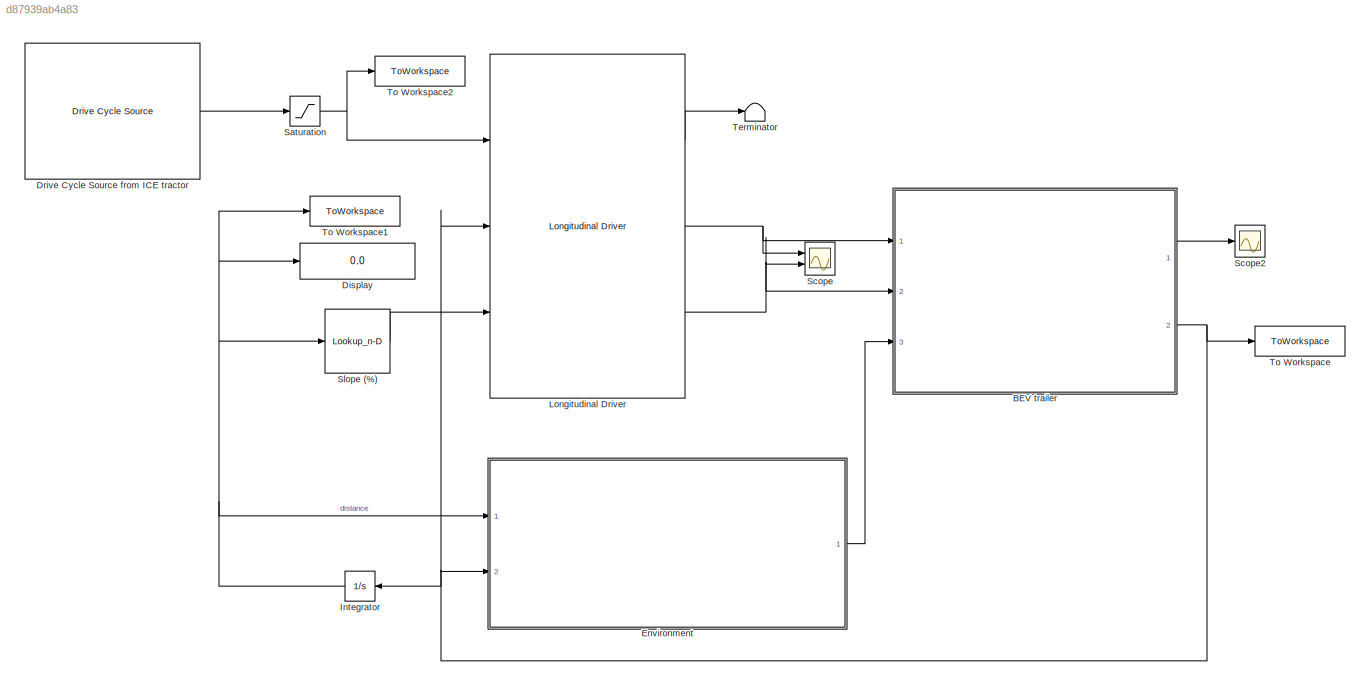
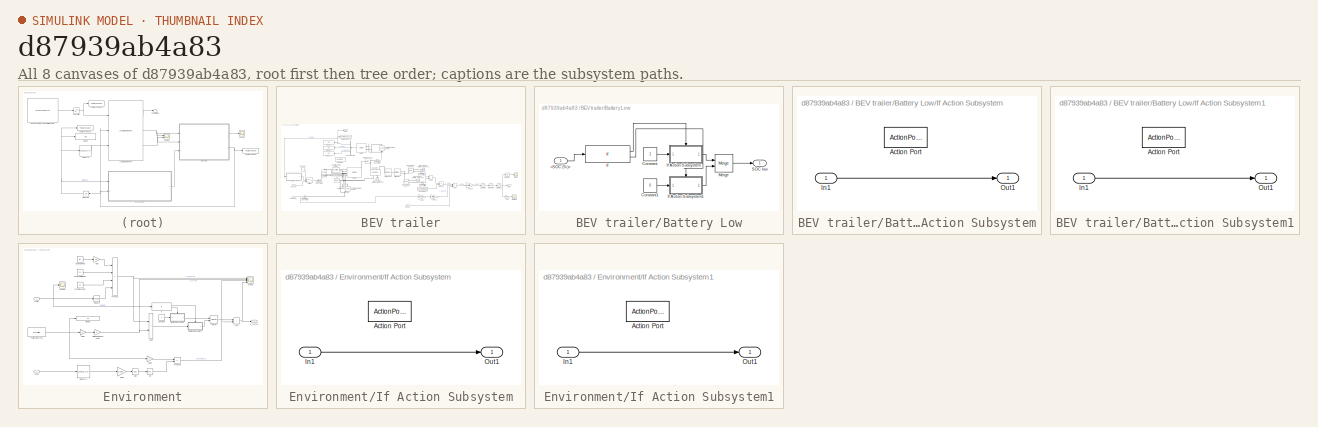
[diagram: thumbnail index - all 8 canvases of the model, root first then tree order]
MODEL slx_d87939ab4a83
KIND model
CONFIG AbsTol = auto
CONFIG EnableMultiTasking = off
CONFIG FixedStep = auto
CONFIG MaxStep = auto
CONFIG MinStep = auto
CONFIG RelTol = 1e-3
CONFIG SampleTimeConstraint = Unconstrained
CONFIG SolverName = ode23t
CONFIG StartTime = 0.0
CONFIG StopTime = 30000
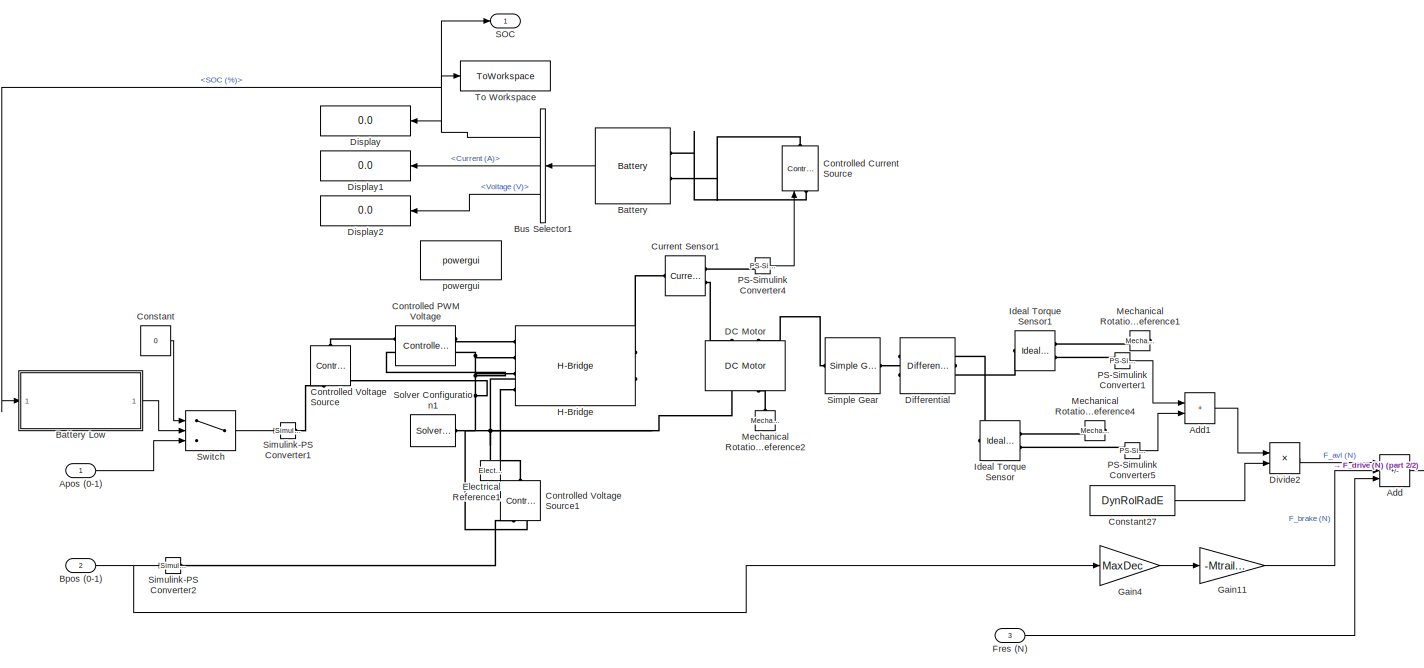
[diagram: BEV trailer - part 1/2, most of the canvas]
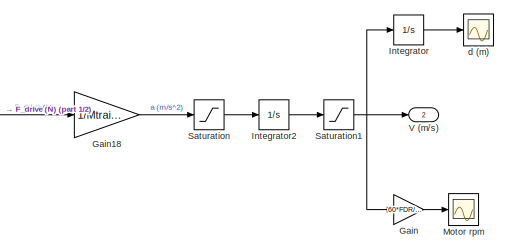
[diagram: BEV trailer - part 2/2, bottom right region]
BLOCK [SubSystem] BEV trailer
  Ports = [3, 2]
  RequestExecContextInheritance = off
BLOCK [Sum] BEV trailer/Add
  IconShape = rectangular
  Inputs = ++-
  Ports = [3, 1]
BLOCK [Sum] BEV trailer/Add1
  IconShape = rectangular
  Ports = [2, 1]
BLOCK [Inport] BEV trailer/Apos (0-1)
BLOCK [Reference] BEV trailer/Battery  REF=electricdrivelib/Extra Sources/Battery
  Ports = [0, 1, 0, 0, 0, 2]
  SourceBlock = electricdrivelib/Extra Sources/Battery
  SourceProductBaseCode = PS
  SourceType = Battery
BLOCK [SubSystem] BEV trailer/Battery Low
  Ports = [1, 1]
  RequestExecContextInheritance = off
BLOCK [Inport] BEV trailer/Battery Low/<SOC (%)>
BLOCK [Constant] BEV trailer/Battery Low/Constant
BLOCK [Constant] BEV trailer/Battery Low/Constant1
  Value = 0
BLOCK [If] BEV trailer/Battery Low/If
  IfExpression = u1 < 1
  Ports = [1, 2]
BLOCK [SubSystem] BEV trailer/Battery Low/If Action Subsystem
  Ports = [1, 1, 0, 0, 0, 0, 0, 1]
  RequestExecContextInheritance = off
  TreatAsAtomicUnit = on
BLOCK [ActionPort] BEV trailer/Battery Low/If Action Subsystem/Action Port
  ActionPortLabel = if(u1 < 1)
BLOCK [Inport] BEV trailer/Battery Low/If Action Subsystem/In1
BLOCK [Outport] BEV trailer/Battery Low/If Action Subsystem/Out1
BLOCK [SubSystem] BEV trailer/Battery Low/If Action Subsystem1
  Ports = [1, 1, 0, 0, 0, 0, 0, 1]
  RequestExecContextInheritance = off
  TreatAsAtomicUnit = on
BLOCK [ActionPort] BEV trailer/Battery Low/If Action Subsystem1/Action Port
  ActionPortLabel = else
BLOCK [Inport] BEV trailer/Battery Low/If Action Subsystem1/In1
BLOCK [Outport] BEV trailer/Battery Low/If Action Subsystem1/Out1
BLOCK [Merge] BEV trailer/Battery Low/Merge
  Ports = [2, 1]
BLOCK [Outport] BEV trailer/Battery Low/SOC low
BLOCK [Inport] BEV trailer/Bpos (0-1)
  Port = 2
BLOCK [BusSelector] BEV trailer/Bus Selector1
  NameLocation = top
  OutputSignals = SOC (%),Current (A),Voltage (V)
  Ports = [1, 3]
BLOCK [Constant] BEV trailer/Constant
  Value = 0
BLOCK [Constant] BEV trailer/Constant27
  Value = DynRolRadE
BLOCK [Reference] BEV trailer/Controlled Current Source  REF=powerlib/Electrical
Sources/Controlled Current Source
  NameLocation = right
  Ports = [1, 0, 0, 0, 0, 1, 1]
  SourceBlock = powerlib/Electrical\nSources/Controlled Current Source
  SourceProductBaseCode = PS
  SourceType = Controlled Current Source
BLOCK [Reference] BEV trailer/Controlled PWM Voltage  REF=ee_lib/Integrated Circuits/Controlled PWM
Voltage
  Ports = [0, 0, 0, 0, 0, 2, 2]
  SourceBlock = ee_lib/Integrated Circuits/Controlled PWM\nVoltage
  SourceProductBaseCode = PS
  SourceType = Controlled PWM\nVoltage
BLOCK [Reference] BEV trailer/Controlled Voltage Source  REF=fl_lib/Electrical/Electrical Sources/Controlled Voltage
Source
  NameLocation = right
  Ports = [0, 0, 0, 0, 0, 1, 2]
  SourceBlock = fl_lib/Electrical/Electrical Sources/Controlled Voltage\nSource
  SourceProductBaseCode = SS
  SourceType = Controlled Voltage\nSource
BLOCK [Reference] BEV trailer/Controlled Voltage Source1  REF=fl_lib/Electrical/Electrical Sources/Controlled Voltage
Source
  NameLocation = right
  Ports = [0, 0, 0, 0, 0, 1, 2]
  SourceBlock = fl_lib/Electrical/Electrical Sources/Controlled Voltage\nSource
  SourceProductBaseCode = SS
  SourceType = Controlled Voltage\nSource
BLOCK [Reference] BEV trailer/Current Sensor1  REF=fl_lib/Electrical/Electrical Sensors/Current Sensor
  Ports = [0, 0, 0, 0, 0, 1, 2]
  SourceBlock = fl_lib/Electrical/Electrical Sensors/Current Sensor
  SourceProductBaseCode = SS
  SourceType = Current Sensor
BLOCK [Reference] BEV trailer/DC Motor  REF=ee_lib/Electromechanical/Brushed Motors/DC Motor
  NameLocation = right
  Ports = [0, 0, 0, 0, 0, 2, 2]
  SourceBlock = ee_lib/Electromechanical/Brushed Motors/DC Motor
  SourceProductBaseCode = PS
  SourceType = DC Motor
BLOCK [Reference] BEV trailer/Differential  REF=sdl_lib/Gears/Differential
  NameLocation = top
  Ports = [0, 0, 0, 0, 0, 1, 2]
  SourceBlock = sdl_lib/Gears/Differential
  SourceProductBaseCode = LD
  SourceType = Differential
BLOCK [Display] BEV trailer/Display
  Decimation = 1
  NameLocation = top
  Ports = [1]
BLOCK [Display] BEV trailer/Display1
  Decimation = 1
  NameLocation = top
  Ports = [1]
BLOCK [Display] BEV trailer/Display2
  Decimation = 1
  NameLocation = top
  Ports = [1]
BLOCK [Product] BEV trailer/Divide2
  Inputs = */
  Ports = [2, 1]
BLOCK [Reference] BEV trailer/Electrical Reference1  REF=fl_lib/Electrical/Electrical Elements/Electrical Reference
  NameLocation = right
  Ports = [0, 0, 0, 0, 0, 1]
  SourceBlock = fl_lib/Electrical/Electrical Elements/Electrical Reference
  SourceProductBaseCode = SS
  SourceType = Electrical Reference
BLOCK [Inport] BEV trailer/Fres (N)
  Port = 3
BLOCK [Gain] BEV trailer/Gain
  Gain = 60*FDR/(2*3.1415*DynRolRad)
BLOCK [Gain] BEV trailer/Gain11
  Gain = -Mtrailer
BLOCK [Gain] BEV trailer/Gain18
  Gain = 1/Mtrailer
BLOCK [Gain] BEV trailer/Gain4
  Gain = MaxDec
BLOCK [Reference] BEV trailer/H-Bridge  REF=ee_lib/Semiconductors &
Converters/Converters/H-Bridge
  Ports = [0, 0, 0, 0, 0, 4, 2]
  SourceBlock = ee_lib/Semiconductors &\nConverters/Converters/H-Bridge
  SourceProductBaseCode = PS
  SourceType = H-Bridge
BLOCK [Reference] BEV trailer/Ideal Torque Sensor  REF=fl_lib/Mechanical/Mechanical Sensors/Ideal Torque Sensor
  Ports = [0, 0, 0, 0, 0, 1, 2]
  SourceBlock = fl_lib/Mechanical/Mechanical Sensors/Ideal Torque Sensor
  SourceProductBaseCode = SS
  SourceType = Ideal Torque Sensor
BLOCK [Reference] BEV trailer/Ideal Torque Sensor1  REF=fl_lib/Mechanical/Mechanical Sensors/Ideal Torque Sensor
  Ports = [0, 0, 0, 0, 0, 1, 2]
  SourceBlock = fl_lib/Mechanical/Mechanical Sensors/Ideal Torque Sensor
  SourceProductBaseCode = SS
  SourceType = Ideal Torque Sensor
BLOCK [Integrator] BEV trailer/Integrator
  Ports = [1, 1]
BLOCK [Integrator] BEV trailer/Integrator2
  ContinuousStateAttributes = 'acceleration'
  Ports = [1, 1]
BLOCK [Reference] BEV trailer/Mechanical Rotational Reference1  REF=fl_lib/Mechanical/Rotational Elements/Mechanical
Rotational Reference
  NameLocation = top
  Ports = [0, 0, 0, 0, 0, 1]
  SourceBlock = fl_lib/Mechanical/Rotational Elements/Mechanical\nRotational Reference
  SourceProductBaseCode = SS
  SourceType = Mechanical\nRotational Reference
BLOCK [Reference] BEV trailer/Mechanical Rotational Reference2  REF=fl_lib/Mechanical/Rotational Elements/Mechanical
Rotational Reference
  NameLocation = right
  Ports = [0, 0, 0, 0, 0, 1]
  SourceBlock = fl_lib/Mechanical/Rotational Elements/Mechanical\nRotational Reference
  SourceProductBaseCode = SS
  SourceType = Mechanical\nRotational Reference
BLOCK [Reference] BEV trailer/Mechanical Rotational Reference4  REF=fl_lib/Mechanical/Rotational Elements/Mechanical
Rotational Reference
  NameLocation = top
  Ports = [0, 0, 0, 0, 0, 1]
  SourceBlock = fl_lib/Mechanical/Rotational Elements/Mechanical\nRotational Reference
  SourceProductBaseCode = SS
  SourceType = Mechanical\nRotational Reference
BLOCK [Scope] BEV trailer/Motor rpm
  Floating = off
  NumInputPorts = 1
  Ports = [1]
  ScopeSpecificationString = Simulink.scopes.TimeScopeBlockCfg('CurrentConfiguration', extmgr.ConfigurationSet(extmgr.Configuration('Core','General UI',true),extmgr.Configuration('Core','Source UI',true),extmgr.Configuration('Sources','WiredSimulink',true,'DataLoggingVariableName','ScopeData2'),extmgr.Configuration('Visuals','Time Domain',true,'SerializedDisplays',{struct('MinYLimReal','-586.22373','MaxYLimReal','5276.01359',...<+1434ch>
BLOCK [Reference] BEV trailer/PS-Simulink Converter1  REF=nesl_utility/PS-Simulink
Converter
  Ports = [0, 1, 0, 0, 0, 1]
  SourceBlock = nesl_utility/PS-Simulink\nConverter
  SourceProductBaseCode = PW,SS
  SourceType = PS-Simulink\nConverter
BLOCK [Reference] BEV trailer/PS-Simulink Converter4  REF=nesl_utility/PS-Simulink
Converter
  Ports = [0, 1, 0, 0, 0, 1]
  SourceBlock = nesl_utility/PS-Simulink\nConverter
  SourceProductBaseCode = PW,SS
  SourceType = PS-Simulink\nConverter
BLOCK [Reference] BEV trailer/PS-Simulink Converter5  REF=nesl_utility/PS-Simulink
Converter
  Ports = [0, 1, 0, 0, 0, 1]
  SourceBlock = nesl_utility/PS-Simulink\nConverter
  SourceProductBaseCode = PW,SS
  SourceType = PS-Simulink\nConverter
BLOCK [Outport] BEV trailer/SOC 
BLOCK [Saturate] BEV trailer/Saturation
  LowerLimit = -(MaxDec)
  UpperLimit = MaxAcc
BLOCK [Saturate] BEV trailer/Saturation1
  LowerLimit = 0
  UpperLimit = inf
BLOCK [Reference] BEV trailer/Simple Gear  REF=sdl_lib/Gears/Simple Gear
  Ports = [0, 0, 0, 0, 0, 1, 1]
  SourceBlock = sdl_lib/Gears/Simple Gear
  SourceProductBaseCode = LD
  SourceType = Simple Gear
BLOCK [Reference] BEV trailer/Simulink-PS Converter1  REF=nesl_utility/Simulink-PS
Converter
  Ports = [1, 0, 0, 0, 0, 0, 1]
  SourceBlock = nesl_utility/Simulink-PS\nConverter
  SourceProductBaseCode = PW,SS
  SourceType = Simulink-PS\nConverter
BLOCK [Reference] BEV trailer/Simulink-PS Converter2  REF=nesl_utility/Simulink-PS
Converter
  Ports = [1, 0, 0, 0, 0, 0, 1]
  SourceBlock = nesl_utility/Simulink-PS\nConverter
  SourceProductBaseCode = PW,SS
  SourceType = Simulink-PS\nConverter
BLOCK [Reference] BEV trailer/Solver Configuration1  REF=nesl_utility/Solver
Configuration
  Ports = [0, 0, 0, 0, 0, 0, 1]
  SourceBlock = nesl_utility/Solver\nConfiguration
  SourceProductBaseCode = PW,SS
  SourceType = Solver\nConfiguration
BLOCK [Switch] BEV trailer/Switch
  Criteria = u2 > Threshold
  InputSameDT = off
  SaturateOnIntegerOverflow = off
BLOCK [ToWorkspace] BEV trailer/To Workspace
  FixptAsFi = on
  MaxDataPoints = inf
  Ports = [1]
  SampleTime = -1
  SaveFormat = Timeseries
  VariableName = SOC
BLOCK [Outport] BEV trailer/V (m//s)
  Port = 2
BLOCK [Scope] BEV trailer/d (m)
  Floating = off
  NumInputPorts = 1
  Ports = [1]
  ScopeSpecificationString = Simulink.scopes.TimeScopeBlockCfg('CurrentConfiguration', extmgr.ConfigurationSet(extmgr.Configuration('Core','General UI',true),extmgr.Configuration('Core','Source UI',true),extmgr.Configuration('Sources','WiredSimulink',true,'DataLoggingVariableName','ScopeData1'),extmgr.Configuration('Visuals','Time Domain',true,'SerializedDisplays',{struct('MinYLimReal','-12532.63505','MaxYLimReal','112793.715...<+1474ch>
BLOCK [Reference] BEV trailer/powergui  REF=powerlib/powergui
  Ports = []
  Priority = 1
  SourceBlock = powerlib/powergui
  SourceProductBaseCode = PS
  SourceType = PSB option menu block
BLOCK [Display] Display
  Decimation = 1
  Format = long
  Ports = [1]
BLOCK [Reference] Drive Cycle Source from ICE tractor  REF=autolibshared/Drive Cycle Source
  AttributesFormatString = %<cycleVar> (%<tfinal>)
  Ports = [0, 1]
  SourceBlock = autolibshared/Drive Cycle Source
  SourceProductBaseCode = PW,MT,UV,VE,VP
  SourceType = Drive Cycle Source
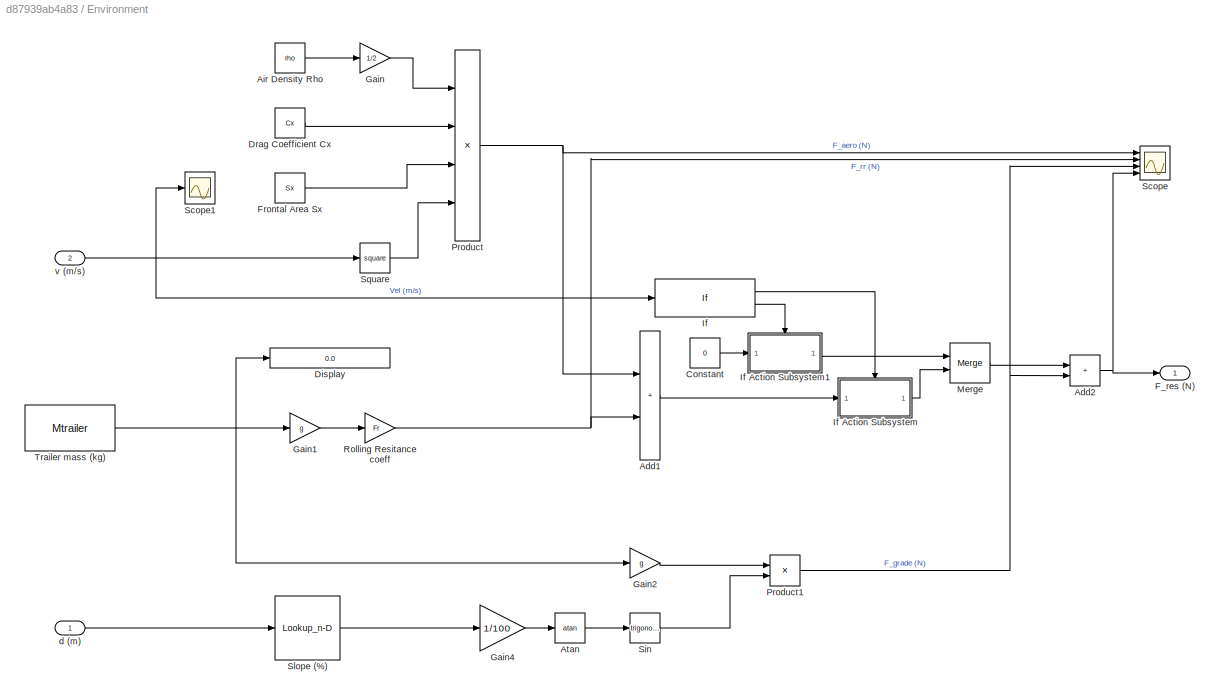
BLOCK [SubSystem] Environment
  Ports = [2, 1]
  RequestExecContextInheritance = off
BLOCK [Sum] Environment/Add1
  IconShape = rectangular
  Ports = [2, 1]
BLOCK [Sum] Environment/Add2
  IconShape = rectangular
  Ports = [2, 1]
BLOCK [Constant] Environment/Air Density Rho
  Value = rho
BLOCK [Trigonometry] Environment/Atan
  Operator = atan
  Ports = [1, 1]
BLOCK [Constant] Environment/Constant
  Value = 0
BLOCK [Display] Environment/Display
  Decimation = 1
  Format = long
  Ports = [1]
BLOCK [Constant] Environment/Drag Coefficient Cx
  Value = Cx
BLOCK [Outport] Environment/F_res (N)
BLOCK [Constant] Environment/Frontal Area Sx
  Value = Sx
BLOCK [Gain] Environment/Gain
  Gain = 1/2
BLOCK [Gain] Environment/Gain1
  Gain = g
BLOCK [Gain] Environment/Gain2
  Gain = g
BLOCK [Gain] Environment/Gain4
  Gain = 1/100
BLOCK [If] Environment/If
  Ports = [1, 2]
BLOCK [SubSystem] Environment/If Action Subsystem
  Ports = [1, 1, 0, 0, 0, 0, 0, 1]
  RequestExecContextInheritance = off
  TreatAsAtomicUnit = on
BLOCK [ActionPort] Environment/If Action Subsystem/Action Port
  ActionPortLabel = if(u1 > 0)
BLOCK [Inport] Environment/If Action Subsystem/In1
BLOCK [Outport] Environment/If Action Subsystem/Out1
BLOCK [SubSystem] Environment/If Action Subsystem1
  Ports = [1, 1, 0, 0, 0, 0, 0, 1]
  RequestExecContextInheritance = off
  TreatAsAtomicUnit = on
BLOCK [ActionPort] Environment/If Action Subsystem1/Action Port
  ActionPortLabel = else
BLOCK [Inport] Environment/If Action Subsystem1/In1
BLOCK [Outport] Environment/If Action Subsystem1/Out1
BLOCK [Merge] Environment/Merge
  Ports = [2, 1]
BLOCK [Product] Environment/Product
  Inputs = 4
  Ports = [4, 1]
BLOCK [Product] Environment/Product1
  Ports = [2, 1]
BLOCK [Gain] Environment/Rolling Resitance coeff
  Gain = Fr
BLOCK [Scope] Environment/Scope
  Floating = off
  NumInputPorts = 4
  Ports = [4]
  ScopeSpecificationString = Simulink.scopes.TimeScopeBlockCfg('CurrentConfiguration', extmgr.ConfigurationSet(extmgr.Configuration('Core','General UI',true),extmgr.Configuration('Core','Source UI',true),extmgr.Configuration('Sources','WiredSimulink',true,'DataLoggingVariableName','ScopeData16'),extmgr.Configuration('Visuals','Time Domain',true,'SerializedDisplays',{struct('MinYLimReal','-30512.50148','MaxYLimReal','34655.546...<+1620ch>
BLOCK [Scope] Environment/Scope1
  Floating = off
  NumInputPorts = 1
  Ports = [1]
  ScopeSpecificationString = Simulink.scopes.TimeScopeBlockCfg('CurrentConfiguration', extmgr.ConfigurationSet(extmgr.Configuration('Core','General UI',true),extmgr.Configuration('Core','Source UI',true),extmgr.Configuration('Sources','WiredSimulink',true,'DataLoggingVariableName','ScopeData10'),extmgr.Configuration('Visuals','Time Domain',true,'SerializedDisplays',{struct('MinYLimReal','-1.15217','MaxYLimReal','10.36951','YL...<+1417ch>
BLOCK [Trigonometry] Environment/Sin
  Ports = [1, 1]
BLOCK [Lookup_n-D] Environment/Slope (%)
  BreakpointsForDimension1 = Dist
  InputPortMap = u0
  InternalRulePriority = Speed
  NumberOfTableDimensions = 1
  Ports = [1, 1]
  RndMeth = Simplest
  Table = IntpSlope
BLOCK [Math] Environment/Square
  Operator = square
  Ports = [1, 1]
BLOCK [Constant] Environment/Trailer mass (kg)
  Value = Mtrailer
BLOCK [Inport] Environment/d (m)
BLOCK [Inport] Environment/v (m//s)
  Port = 2
BLOCK [Integrator] Integrator
  NameLocation = top
  Ports = [1, 1]
BLOCK [Reference] Longitudinal Driver  REF=autolibshared/Longitudinal Driver
  Ports = [3, 3]
  SourceBlock = autolibshared/Longitudinal Driver
  SourceProductBaseCode = PW,DR,MT,UV,VE
  SourceType = Longitudinal Driver
BLOCK [Saturate] Saturation
  LowerLimit = 0
  UpperLimit = inf
BLOCK [Scope] Scope
  Floating = off
  NumInputPorts = 2
  Ports = [2]
  ScopeSpecificationString = Simulink.scopes.TimeScopeBlockCfg('CurrentConfiguration', extmgr.ConfigurationSet(extmgr.Configuration('Core','General UI',true),extmgr.Configuration('Core','Source UI',true),extmgr.Configuration('Sources','WiredSimulink',true,'DataLoggingVariableName','ScopeData1'),extmgr.Configuration('Visuals','Time Domain',true,'SerializedDisplays',{struct('MinYLimReal','-0.00004','MaxYLimReal','0.00051','YLab...<+1456ch>
BLOCK [Scope] Scope2
  Floating = off
  NumInputPorts = 1
  Ports = [1]
  ScopeSpecificationString = Simulink.scopes.TimeScopeBlockCfg('CurrentConfiguration', extmgr.ConfigurationSet(extmgr.Configuration('Core','General UI',true),extmgr.Configuration('Core','Source UI',true),extmgr.Configuration('Sources','WiredSimulink',true,'DataLoggingVariableName','ScopeData1'),extmgr.Configuration('Visuals','Time Domain',true,'SerializedDisplays',{struct('MinYLimReal','83.26739','MaxYLimReal','83.76551','YLa...<+1436ch>
BLOCK [Lookup_n-D] Slope (%)
  BreakpointsForDimension1 = Dist
  InputPortMap = u0
  InternalRulePriority = Speed
  NumberOfTableDimensions = 1
  Ports = [1, 1]
  RndMeth = Simplest
  Table = IntpSlope
BLOCK [Terminator] Terminator
BLOCK [ToWorkspace] To Workspace
  FixptAsFi = on
  MaxDataPoints = inf
  Ports = [1]
  SampleTime = -1
  SaveFormat = Timeseries
  VariableName = vel
BLOCK [ToWorkspace] To Workspace1
  FixptAsFi = on
  MaxDataPoints = inf
  Ports = [1]
  SampleTime = -1
  SaveFormat = Timeseries
  VariableName = dist
BLOCK [ToWorkspace] To Workspace2
  FixptAsFi = on
  MaxDataPoints = inf
  Ports = [1]
  SampleTime = -1
  SaveFormat = Timeseries
  VariableName = targ
LINE BEV trailer/Add1:1 -> BEV trailer/Divide2:1
LINE BEV trailer/Add:1 -> BEV trailer/Gain18:1
LINE BEV trailer/Apos (0-1):1 -> BEV trailer/Switch:3
LINE BEV trailer/Battery Low/<SOC (%)>:1 -> BEV trailer/Battery Low/If:1
LINE BEV trailer/Battery Low/Constant1:1 -> BEV trailer/Battery Low/If Action Subsystem1:1
LINE BEV trailer/Battery Low/Constant:1 -> BEV trailer/Battery Low/If Action Subsystem:1
LINE BEV trailer/Battery Low/If Action Subsystem/In1:1 -> BEV trailer/Battery Low/If Action Subsystem/Out1:1
LINE BEV trailer/Battery Low/If Action Subsystem1/In1:1 -> BEV trailer/Battery Low/If Action Subsystem1/Out1:1
LINE BEV trailer/Battery Low/If Action Subsystem1:1 -> BEV trailer/Battery Low/Merge:2
LINE BEV trailer/Battery Low/If Action Subsystem:1 -> BEV trailer/Battery Low/Merge:1
LINE BEV trailer/Battery Low/If:1 -> BEV trailer/Battery Low/If Action Subsystem:ifaction
LINE BEV trailer/Battery Low/If:2 -> BEV trailer/Battery Low/If Action Subsystem1:ifaction
LINE BEV trailer/Battery Low/Merge:1 -> BEV trailer/Battery Low/SOC low:1
LINE BEV trailer/Battery Low:1 -> BEV trailer/Switch:2
LINE BEV trailer/Battery:1 -> BEV trailer/Bus Selector1:1
NET BEV trailer/Bpos (0-1):1 -> BEV trailer/Gain4:1, BEV trailer/Simulink-PS Converter2:1
NET BEV trailer/Bus Selector1:1 -> BEV trailer/Battery Low:1, BEV trailer/Display:1, BEV trailer/SOC :1, BEV trailer/To Workspace:1
LINE BEV trailer/Bus Selector1:2 -> BEV trailer/Display1:1
LINE BEV trailer/Bus Selector1:3 -> BEV trailer/Display2:1
LINE BEV trailer/Constant27:1 -> BEV trailer/Divide2:2
LINE BEV trailer/Constant:1 -> BEV trailer/Switch:1
LINE BEV trailer/Divide2:1 -> BEV trailer/Add:1
LINE BEV trailer/Fres (N):1 -> BEV trailer/Add:3
LINE BEV trailer/Gain11:1 -> BEV trailer/Add:2
LINE BEV trailer/Gain18:1 -> BEV trailer/Saturation:1
LINE BEV trailer/Gain4:1 -> BEV trailer/Gain11:1
LINE BEV trailer/Gain:1 -> BEV trailer/Motor rpm:1
LINE BEV trailer/Integrator2:1 -> BEV trailer/Saturation1:1
LINE BEV trailer/Integrator:1 -> BEV trailer/d (m):1
LINE BEV trailer/PS-Simulink Converter1:1 -> BEV trailer/Add1:1
LINE BEV trailer/PS-Simulink Converter4:1 -> BEV trailer/Controlled Current Source:1
LINE BEV trailer/PS-Simulink Converter5:1 -> BEV trailer/Add1:2
NET BEV trailer/Saturation1:1 -> BEV trailer/Gain:1, BEV trailer/Integrator:1, BEV trailer/V (m//s):1
LINE BEV trailer/Saturation:1 -> BEV trailer/Integrator2:1
LINE BEV trailer/Switch:1 -> BEV trailer/Simulink-PS Converter1:1
LINE BEV trailer:1 -> Scope2:1
NET BEV trailer:2 -> Environment:2, Integrator:1, Longitudinal Driver:2, To Workspace:1
LINE Drive Cycle Source from ICE tractor:1 -> Saturation:1
LINE Environment/Add1:1 -> Environment/If Action Subsystem:1
NET Environment/Add2:1 -> Environment/F_res (N):1, Environment/Scope:4
LINE Environment/Air Density Rho:1 -> Environment/Gain:1
LINE Environment/Atan:1 -> Environment/Sin:1
LINE Environment/Constant:1 -> Environment/If Action Subsystem1:1
LINE Environment/Drag Coefficient Cx:1 -> Environment/Product:2
LINE Environment/Frontal Area Sx:1 -> Environment/Product:3
LINE Environment/Gain1:1 -> Environment/Rolling Resitance coeff:1
LINE Environment/Gain2:1 -> Environment/Product1:1
LINE Environment/Gain4:1 -> Environment/Atan:1
LINE Environment/Gain:1 -> Environment/Product:1
LINE Environment/If Action Subsystem/In1:1 -> Environment/If Action Subsystem/Out1:1
LINE Environment/If Action Subsystem1/In1:1 -> Environment/If Action Subsystem1/Out1:1
LINE Environment/If Action Subsystem1:1 -> Environment/Merge:1
LINE Environment/If Action Subsystem:1 -> Environment/Merge:2
LINE Environment/If:1 -> Environment/If Action Subsystem:ifaction
LINE Environment/If:2 -> Environment/If Action Subsystem1:ifaction
LINE Environment/Merge:1 -> Environment/Add2:1
NET Environment/Product1:1 -> Environment/Add2:2, Environment/Scope:3
NET Environment/Product:1 -> Environment/Add1:1, Environment/Scope:1
NET Environment/Rolling Resitance coeff:1 -> Environment/Add1:2, Environment/Scope:2
LINE Environment/Sin:1 -> Environment/Product1:2
LINE Environment/Slope (%):1 -> Environment/Gain4:1
LINE Environment/Square:1 -> Environment/Product:4
NET Environment/Trailer mass (kg):1 -> Environment/Display:1, Environment/Gain1:1, Environment/Gain2:1
LINE Environment/d (m):1 -> Environment/Slope (%):1
NET Environment/v (m//s):1 -> Environment/If:1, Environment/Scope1:1, Environment/Square:1
LINE Environment:1 -> BEV trailer:3
NET Integrator:1 -> Display:1, Environment:1, Slope (%):1, To Workspace1:1
LINE Longitudinal Driver:1 -> Terminator:1
NET Longitudinal Driver:2 -> BEV trailer:1, Scope:1
NET Longitudinal Driver:3 -> BEV trailer:2, Scope:2
NET Saturation:1 -> Longitudinal Driver:1, To Workspace2:1
LINE Slope (%):1 -> Longitudinal Driver:3
PLINE BEV trailer/Battery:LConn1 -- BEV trailer/Controlled Current Source:LConn1
PLINE BEV trailer/Battery:LConn2 -- BEV trailer/Controlled Current Source:RConn1
PLINE BEV trailer/Controlled PWM Voltage:LConn1 -- BEV trailer/Controlled Voltage Source:LConn1
PNET net1: BEV trailer/Controlled PWM Voltage:LConn2 -- BEV trailer/Controlled PWM Voltage:RConn2 -- BEV trailer/Controlled Voltage Source1:RConn2 -- BEV trailer/Controlled Voltage Source:RConn2 -- BEV trailer/DC Motor:RConn1 -- BEV trailer/Electrical Reference1:LConn1 -- BEV trailer/H-Bridge:LConn2 -- BEV trailer/H-Bridge:LConn3 -- BEV trailer/H-Bridge:RConn2 -- BEV trailer/Solver Configuration1:RConn1
PLINE BEV trailer/Controlled PWM Voltage:RConn1 -- BEV trailer/H-Bridge:LConn1
PLINE BEV trailer/Controlled Voltage Source1:LConn1 -- BEV trailer/H-Bridge:LConn4
PLINE BEV trailer/Controlled Voltage Source1:RConn1 -- BEV trailer/Simulink-PS Converter2:RConn1
PLINE BEV trailer/Controlled Voltage Source:RConn1 -- BEV trailer/Simulink-PS Converter1:RConn1
PLINE BEV trailer/Current Sensor1:LConn1 -- BEV trailer/H-Bridge:RConn1
PLINE BEV trailer/Current Sensor1:RConn1 -- BEV trailer/PS-Simulink Converter4:LConn1
PLINE BEV trailer/Current Sensor1:RConn2 -- BEV trailer/DC Motor:LConn1
PLINE BEV trailer/DC Motor:LConn2 -- BEV trailer/Simple Gear:LConn1
PLINE BEV trailer/DC Motor:RConn2 -- BEV trailer/Mechanical Rotational Reference2:LConn1
PLINE BEV trailer/Differential:LConn1 -- BEV trailer/Simple Gear:RConn1
PLINE BEV trailer/Differential:RConn1 -- BEV trailer/Ideal Torque Sensor:LConn1
PLINE BEV trailer/Differential:RConn2 -- BEV trailer/Ideal Torque Sensor1:LConn1
PLINE BEV trailer/Ideal Torque Sensor1:RConn1 -- BEV trailer/Mechanical Rotational Reference1:LConn1
PLINE BEV trailer/Ideal Torque Sensor1:RConn2 -- BEV trailer/PS-Simulink Converter1:LConn1
PLINE BEV trailer/Ideal Torque Sensor:RConn1 -- BEV trailer/Mechanical Rotational Reference4:LConn1
PLINE BEV trailer/Ideal Torque Sensor:RConn2 -- BEV trailer/PS-Simulink Converter5:LConn1
note: NET lines group one-source signal fan-out (src -> all destinations, sorted); 1:1 wires keep LINE; PNET lines group multi-terminal physical nets as a canonical sorted terminal list (undirected conserving connections); 2-terminal nets keep the pairwise PLINE form
